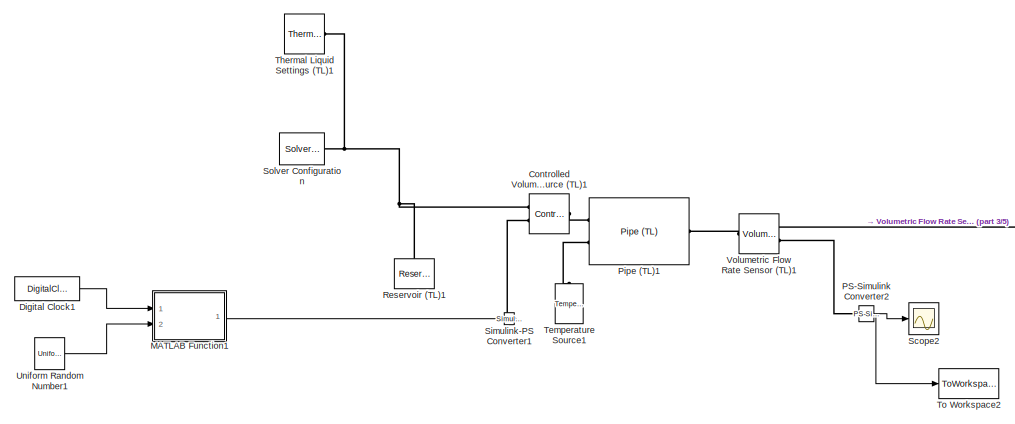
[diagram: root canvas - part 1/5, top left region]
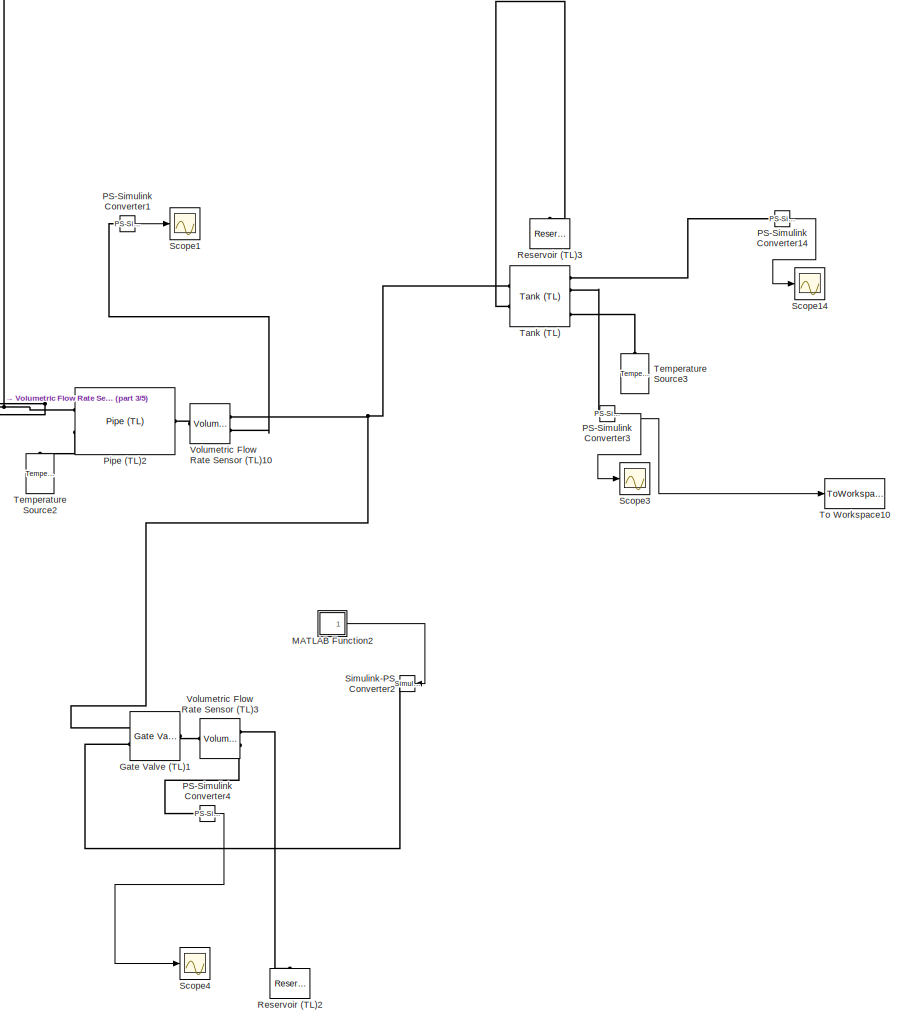
[diagram: root canvas - part 2/5, top right region]
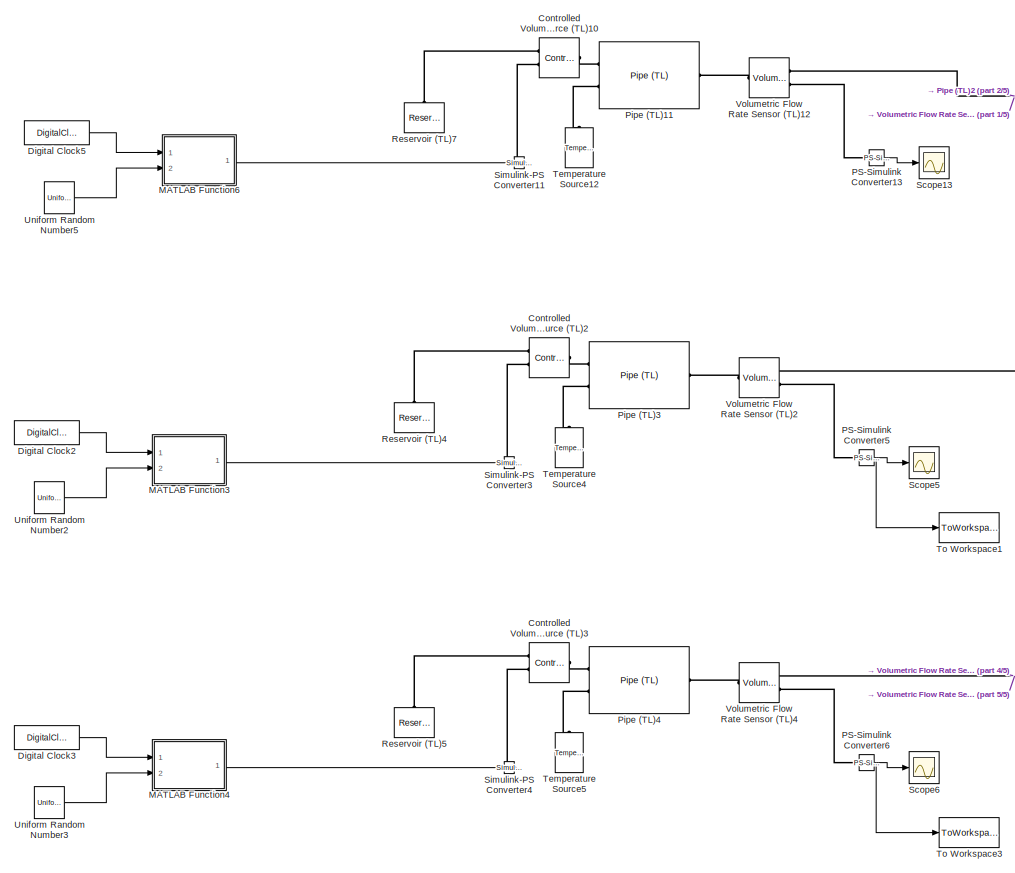
[diagram: root canvas - part 3/5, top left region]
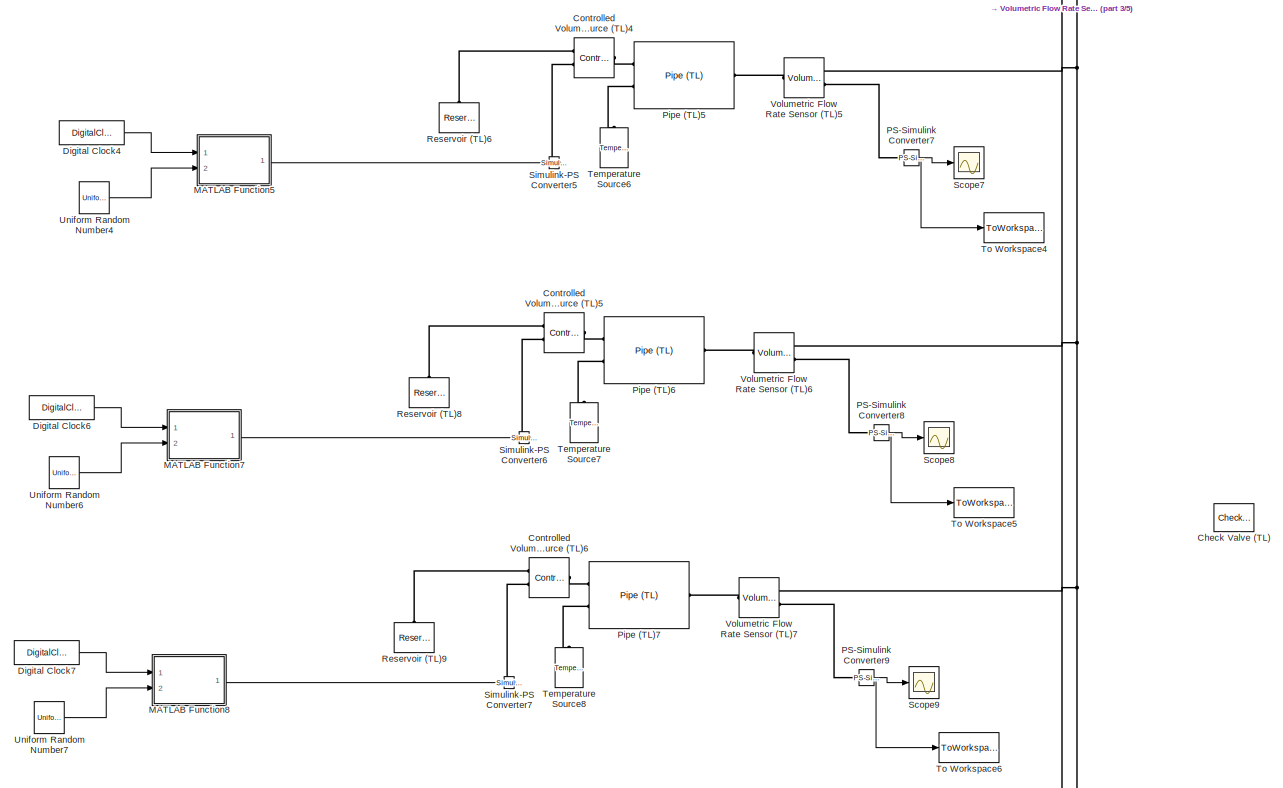
[diagram: root canvas - part 4/5, middle left region]
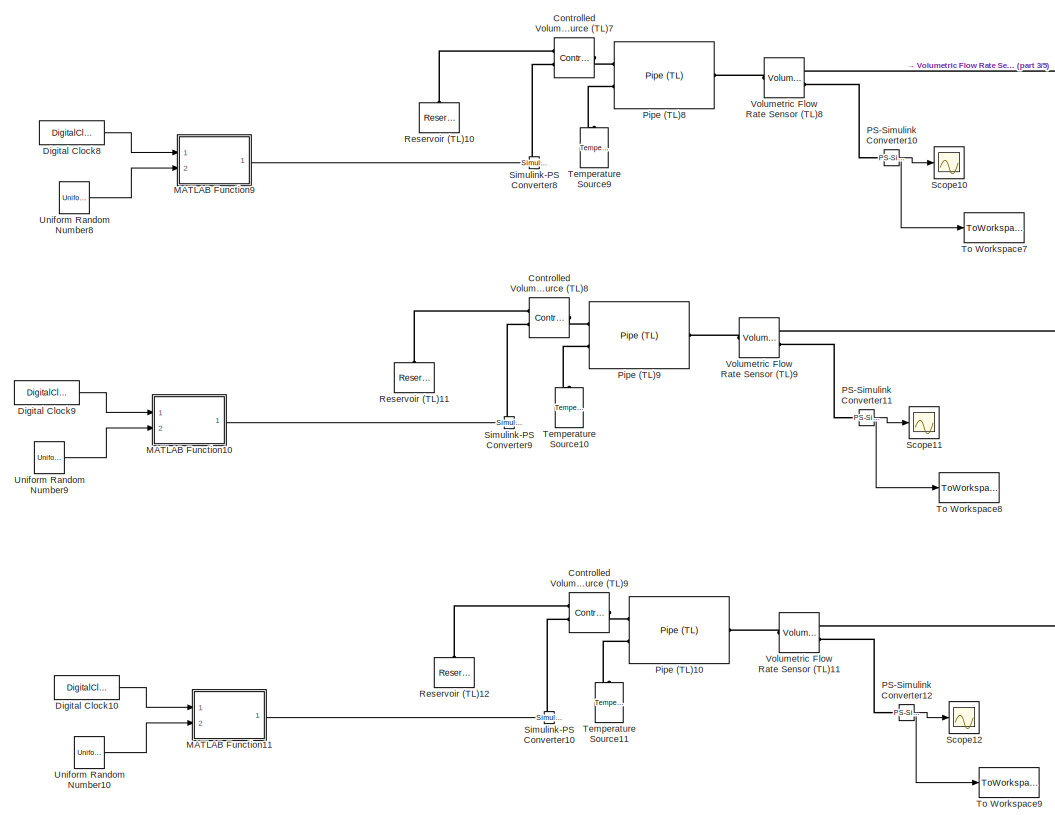
[diagram: root canvas - part 5/5, bottom left region]
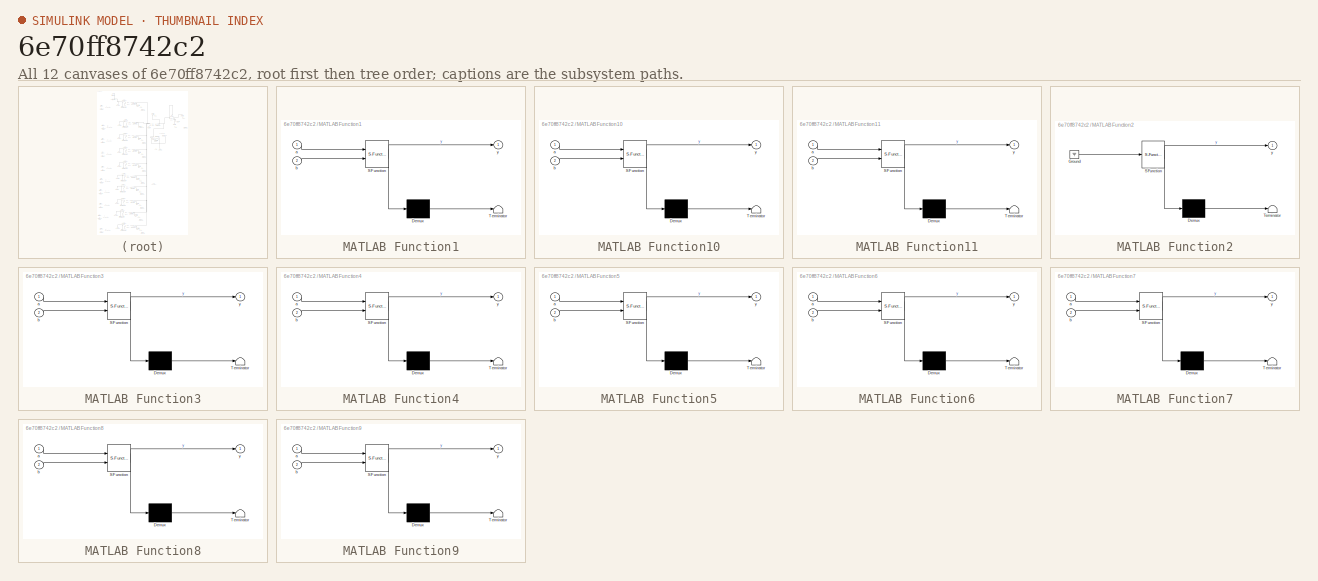
[diagram: thumbnail index - all 12 canvases of the model, root first then tree order]
MODEL slx_6e70ff8742c2
KIND model
CONFIG AbsTol = 1e-3
CONFIG EnableMultiTasking = off
CONFIG FixedStep = auto
CONFIG MaxStep = auto
CONFIG MinStep = auto
CONFIG RelTol = 1e-3
CONFIG SampleTimeConstraint = Unconstrained
CONFIG Solver = VariableStepAuto
CONFIG SolverName = VariableStepAuto
CONFIG StartTime = 0.0
CONFIG StopTime = 100
BLOCK [Reference] Check Valve (TL)  REF=SimscapeFluids_lib/Thermal Liquid/Valves & Orifices/Directional Control
Valves/Check Valve (TL)
  Commented = on
  Ports = [0, 0, 0, 0, 0, 1, 1]
  SourceBlock = SimscapeFluids_lib/Thermal Liquid/Valves & Orifices/Directional Control\nValves/Check Valve (TL)
  SourceProductBaseCode = SH
  SourceProductName = Simscape Fluids
  SourceType = Check Valve (TL)
BLOCK [Reference] Controlled Volumetric Flow Rate Source (TL)1  REF=fl_lib/Thermal Liquid/Sources/Controlled
Volumetric Flow Rate
Source (TL)
  Ports = [0, 0, 0, 0, 0, 2, 1]
  SourceBlock = fl_lib/Thermal Liquid/Sources/Controlled\nVolumetric Flow Rate\nSource (TL)
  SourceProductBaseCode = SS
  SourceProductName = Simscape
  SourceType = Controlled\nVolumetric Flow Rate\nSource (TL)
BLOCK [Reference] Controlled Volumetric Flow Rate Source (TL)10  REF=fl_lib/Thermal Liquid/Sources/Controlled
Volumetric Flow Rate
Source (TL)
  Ports = [0, 0, 0, 0, 0, 2, 1]
  SourceBlock = fl_lib/Thermal Liquid/Sources/Controlled\nVolumetric Flow Rate\nSource (TL)
  SourceProductBaseCode = SS
  SourceProductName = Simscape
  SourceType = Controlled\nVolumetric Flow Rate\nSource (TL)
BLOCK [Reference] Controlled Volumetric Flow Rate Source (TL)2  REF=fl_lib/Thermal Liquid/Sources/Controlled
Volumetric Flow Rate
Source (TL)
  Ports = [0, 0, 0, 0, 0, 2, 1]
  SourceBlock = fl_lib/Thermal Liquid/Sources/Controlled\nVolumetric Flow Rate\nSource (TL)
  SourceProductBaseCode = SS
  SourceProductName = Simscape
  SourceType = Controlled\nVolumetric Flow Rate\nSource (TL)
BLOCK [Reference] Controlled Volumetric Flow Rate Source (TL)3  REF=fl_lib/Thermal Liquid/Sources/Controlled
Volumetric Flow Rate
Source (TL)
  Ports = [0, 0, 0, 0, 0, 2, 1]
  SourceBlock = fl_lib/Thermal Liquid/Sources/Controlled\nVolumetric Flow Rate\nSource (TL)
  SourceProductBaseCode = SS
  SourceProductName = Simscape
  SourceType = Controlled\nVolumetric Flow Rate\nSource (TL)
BLOCK [Reference] Controlled Volumetric Flow Rate Source (TL)4  REF=fl_lib/Thermal Liquid/Sources/Controlled
Volumetric Flow Rate
Source (TL)
  Ports = [0, 0, 0, 0, 0, 2, 1]
  SourceBlock = fl_lib/Thermal Liquid/Sources/Controlled\nVolumetric Flow Rate\nSource (TL)
  SourceProductBaseCode = SS
  SourceProductName = Simscape
  SourceType = Controlled\nVolumetric Flow Rate\nSource (TL)
BLOCK [Reference] Controlled Volumetric Flow Rate Source (TL)5  REF=fl_lib/Thermal Liquid/Sources/Controlled
Volumetric Flow Rate
Source (TL)
  Ports = [0, 0, 0, 0, 0, 2, 1]
  SourceBlock = fl_lib/Thermal Liquid/Sources/Controlled\nVolumetric Flow Rate\nSource (TL)
  SourceProductBaseCode = SS
  SourceProductName = Simscape
  SourceType = Controlled\nVolumetric Flow Rate\nSource (TL)
BLOCK [Reference] Controlled Volumetric Flow Rate Source (TL)6  REF=fl_lib/Thermal Liquid/Sources/Controlled
Volumetric Flow Rate
Source (TL)
  Ports = [0, 0, 0, 0, 0, 2, 1]
  SourceBlock = fl_lib/Thermal Liquid/Sources/Controlled\nVolumetric Flow Rate\nSource (TL)
  SourceProductBaseCode = SS
  SourceProductName = Simscape
  SourceType = Controlled\nVolumetric Flow Rate\nSource (TL)
BLOCK [Reference] Controlled Volumetric Flow Rate Source (TL)7  REF=fl_lib/Thermal Liquid/Sources/Controlled
Volumetric Flow Rate
Source (TL)
  Ports = [0, 0, 0, 0, 0, 2, 1]
  SourceBlock = fl_lib/Thermal Liquid/Sources/Controlled\nVolumetric Flow Rate\nSource (TL)
  SourceProductBaseCode = SS
  SourceProductName = Simscape
  SourceType = Controlled\nVolumetric Flow Rate\nSource (TL)
BLOCK [Reference] Controlled Volumetric Flow Rate Source (TL)8  REF=fl_lib/Thermal Liquid/Sources/Controlled
Volumetric Flow Rate
Source (TL)
  Ports = [0, 0, 0, 0, 0, 2, 1]
  SourceBlock = fl_lib/Thermal Liquid/Sources/Controlled\nVolumetric Flow Rate\nSource (TL)
  SourceProductBaseCode = SS
  SourceProductName = Simscape
  SourceType = Controlled\nVolumetric Flow Rate\nSource (TL)
BLOCK [Reference] Controlled Volumetric Flow Rate Source (TL)9  REF=fl_lib/Thermal Liquid/Sources/Controlled
Volumetric Flow Rate
Source (TL)
  Ports = [0, 0, 0, 0, 0, 2, 1]
  SourceBlock = fl_lib/Thermal Liquid/Sources/Controlled\nVolumetric Flow Rate\nSource (TL)
  SourceProductBaseCode = SS
  SourceProductName = Simscape
  SourceType = Controlled\nVolumetric Flow Rate\nSource (TL)
BLOCK [DigitalClock] Digital Clock1
BLOCK [DigitalClock] Digital Clock10
BLOCK [DigitalClock] Digital Clock2
BLOCK [DigitalClock] Digital Clock3
BLOCK [DigitalClock] Digital Clock4
BLOCK [DigitalClock] Digital Clock5
BLOCK [DigitalClock] Digital Clock6
BLOCK [DigitalClock] Digital Clock7
BLOCK [DigitalClock] Digital Clock8
BLOCK [DigitalClock] Digital Clock9
BLOCK [Reference] Gate Valve (TL)1  REF=SimscapeFluids_lib/Thermal Liquid/Valves & Orifices/Flow Control Valves/Gate Valve (TL)
  Ports = [0, 0, 0, 0, 0, 2, 1]
  SourceBlock = SimscapeFluids_lib/Thermal Liquid/Valves & Orifices/Flow Control Valves/Gate Valve (TL)
  SourceProductBaseCode = SH
  SourceProductName = Simscape Fluids
  SourceType = Gate Valve (TL)
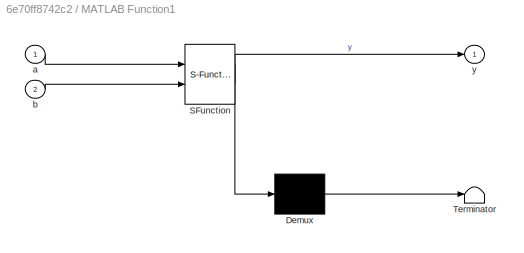
BLOCK [SubSystem] MATLAB Function1
  ErrorFcn = Stateflow.Translate.translate
  PermitHierarchicalResolution = ExplicitOnly
  Ports = [2, 1]
  RequestExecContextInheritance = off
  SFBlockType = MATLAB Function
  TreatAsAtomicUnit = on
BLOCK [Demux] MATLAB Function1/ Demux 
  Outputs = 1
  Ports = [1, 1]
BLOCK [S-Function] MATLAB Function1/ SFunction 
  EnableBusSupport = on
  FunctionName = sf_sfun
  PortCounts = [2 2]
  Ports = [2, 2]
  SFcnIsStateOwnerBlock = off
  SFunctionDeploymentMode = off
  Tag = Stateflow S-Function Simulation 1
BLOCK [Terminator] MATLAB Function1/ Terminator 
BLOCK [Inport] MATLAB Function1/a
  IconDisplay = Port number
BLOCK [Inport] MATLAB Function1/b
  IconDisplay = Port number
  Port = 2
BLOCK [Outport] MATLAB Function1/y
  IconDisplay = Port number
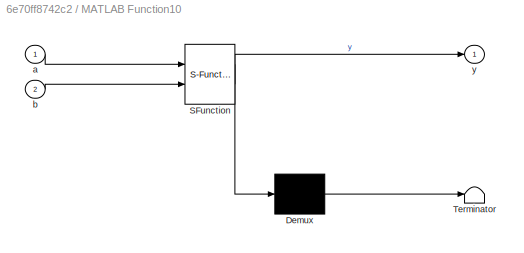
BLOCK [SubSystem] MATLAB Function10
  ErrorFcn = Stateflow.Translate.translate
  PermitHierarchicalResolution = ExplicitOnly
  Ports = [2, 1]
  RequestExecContextInheritance = off
  SFBlockType = MATLAB Function
  TreatAsAtomicUnit = on
BLOCK [Demux] MATLAB Function10/ Demux 
  Outputs = 1
  Ports = [1, 1]
BLOCK [S-Function] MATLAB Function10/ SFunction 
  EnableBusSupport = on
  FunctionName = sf_sfun
  PortCounts = [2 2]
  Ports = [2, 2]
  SFcnIsStateOwnerBlock = off
  SFunctionDeploymentMode = off
  Tag = Stateflow S-Function Simulation 10
BLOCK [Terminator] MATLAB Function10/ Terminator 
BLOCK [Inport] MATLAB Function10/a
  IconDisplay = Port number
BLOCK [Inport] MATLAB Function10/b
  IconDisplay = Port number
  Port = 2
BLOCK [Outport] MATLAB Function10/y
  IconDisplay = Port number
BLOCK [SubSystem] MATLAB Function11
  ErrorFcn = Stateflow.Translate.translate
  PermitHierarchicalResolution = ExplicitOnly
  Ports = [2, 1]
  RequestExecContextInheritance = off
  SFBlockType = MATLAB Function
  TreatAsAtomicUnit = on
BLOCK [Demux] MATLAB Function11/ Demux 
  Outputs = 1
  Ports = [1, 1]
BLOCK [S-Function] MATLAB Function11/ SFunction 
  EnableBusSupport = on
  FunctionName = sf_sfun
  PortCounts = [2 2]
  Ports = [2, 2]
  SFcnIsStateOwnerBlock = off
  SFunctionDeploymentMode = off
  Tag = Stateflow S-Function Simulation 11
BLOCK [Terminator] MATLAB Function11/ Terminator 
BLOCK [Inport] MATLAB Function11/a
  IconDisplay = Port number
BLOCK [Inport] MATLAB Function11/b
  IconDisplay = Port number
  Port = 2
BLOCK [Outport] MATLAB Function11/y
  IconDisplay = Port number
BLOCK [SubSystem] MATLAB Function2
  ErrorFcn = Stateflow.Translate.translate
  PermitHierarchicalResolution = ExplicitOnly
  Ports = [0, 1]
  RequestExecContextInheritance = off
  SFBlockType = MATLAB Function
  TreatAsAtomicUnit = on
BLOCK [Demux] MATLAB Function2/ Demux 
  Outputs = 1
  Ports = [1, 1]
BLOCK [Ground] MATLAB Function2/ Ground 
BLOCK [S-Function] MATLAB Function2/ SFunction 
  EnableBusSupport = on
  FunctionName = sf_sfun
  PortCounts = [1 2]
  Ports = [1, 2]
  SFcnIsStateOwnerBlock = off
  SFunctionDeploymentMode = off
  Tag = Stateflow S-Function Simulation 2
BLOCK [Terminator] MATLAB Function2/ Terminator 
BLOCK [Outport] MATLAB Function2/y
  IconDisplay = Port number
BLOCK [SubSystem] MATLAB Function3
  ErrorFcn = Stateflow.Translate.translate
  PermitHierarchicalResolution = ExplicitOnly
  Ports = [2, 1]
  RequestExecContextInheritance = off
  SFBlockType = MATLAB Function
  TreatAsAtomicUnit = on
BLOCK [Demux] MATLAB Function3/ Demux 
  Outputs = 1
  Ports = [1, 1]
BLOCK [S-Function] MATLAB Function3/ SFunction 
  EnableBusSupport = on
  FunctionName = sf_sfun
  PortCounts = [2 2]
  Ports = [2, 2]
  SFcnIsStateOwnerBlock = off
  SFunctionDeploymentMode = off
  Tag = Stateflow S-Function Simulation 3
BLOCK [Terminator] MATLAB Function3/ Terminator 
BLOCK [Inport] MATLAB Function3/a
  IconDisplay = Port number
BLOCK [Inport] MATLAB Function3/b
  IconDisplay = Port number
  Port = 2
BLOCK [Outport] MATLAB Function3/y
  IconDisplay = Port number
BLOCK [SubSystem] MATLAB Function4
  ErrorFcn = Stateflow.Translate.translate
  PermitHierarchicalResolution = ExplicitOnly
  Ports = [2, 1]
  RequestExecContextInheritance = off
  SFBlockType = MATLAB Function
  TreatAsAtomicUnit = on
BLOCK [Demux] MATLAB Function4/ Demux 
  Outputs = 1
  Ports = [1, 1]
BLOCK [S-Function] MATLAB Function4/ SFunction 
  EnableBusSupport = on
  FunctionName = sf_sfun
  PortCounts = [2 2]
  Ports = [2, 2]
  SFcnIsStateOwnerBlock = off
  SFunctionDeploymentMode = off
  Tag = Stateflow S-Function Simulation 4
BLOCK [Terminator] MATLAB Function4/ Terminator 
BLOCK [Inport] MATLAB Function4/a
  IconDisplay = Port number
BLOCK [Inport] MATLAB Function4/b
  IconDisplay = Port number
  Port = 2
BLOCK [Outport] MATLAB Function4/y
  IconDisplay = Port number
BLOCK [SubSystem] MATLAB Function5
  ErrorFcn = Stateflow.Translate.translate
  PermitHierarchicalResolution = ExplicitOnly
  Ports = [2, 1]
  RequestExecContextInheritance = off
  SFBlockType = MATLAB Function
  TreatAsAtomicUnit = on
BLOCK [Demux] MATLAB Function5/ Demux 
  Outputs = 1
  Ports = [1, 1]
BLOCK [S-Function] MATLAB Function5/ SFunction 
  EnableBusSupport = on
  FunctionName = sf_sfun
  PortCounts = [2 2]
  Ports = [2, 2]
  SFcnIsStateOwnerBlock = off
  SFunctionDeploymentMode = off
  Tag = Stateflow S-Function Simulation 5
BLOCK [Terminator] MATLAB Function5/ Terminator 
BLOCK [Inport] MATLAB Function5/a
  IconDisplay = Port number
BLOCK [Inport] MATLAB Function5/b
  IconDisplay = Port number
  Port = 2
BLOCK [Outport] MATLAB Function5/y
  IconDisplay = Port number
BLOCK [SubSystem] MATLAB Function6
  ErrorFcn = Stateflow.Translate.translate
  PermitHierarchicalResolution = ExplicitOnly
  Ports = [2, 1]
  RequestExecContextInheritance = off
  SFBlockType = MATLAB Function
  TreatAsAtomicUnit = on
BLOCK [Demux] MATLAB Function6/ Demux 
  Outputs = 1
  Ports = [1, 1]
BLOCK [S-Function] MATLAB Function6/ SFunction 
  EnableBusSupport = on
  FunctionName = sf_sfun
  PortCounts = [2 2]
  Ports = [2, 2]
  SFcnIsStateOwnerBlock = off
  SFunctionDeploymentMode = off
  Tag = Stateflow S-Function Simulation 8
BLOCK [Terminator] MATLAB Function6/ Terminator 
BLOCK [Inport] MATLAB Function6/a
  IconDisplay = Port number
BLOCK [Inport] MATLAB Function6/b
  IconDisplay = Port number
  Port = 2
BLOCK [Outport] MATLAB Function6/y
  IconDisplay = Port number
BLOCK [SubSystem] MATLAB Function7
  ErrorFcn = Stateflow.Translate.translate
  PermitHierarchicalResolution = ExplicitOnly
  Ports = [2, 1]
  RequestExecContextInheritance = off
  SFBlockType = MATLAB Function
  TreatAsAtomicUnit = on
BLOCK [Demux] MATLAB Function7/ Demux 
  Outputs = 1
  Ports = [1, 1]
BLOCK [S-Function] MATLAB Function7/ SFunction 
  EnableBusSupport = on
  FunctionName = sf_sfun
  PortCounts = [2 2]
  Ports = [2, 2]
  SFcnIsStateOwnerBlock = off
  SFunctionDeploymentMode = off
  Tag = Stateflow S-Function Simulation 6
BLOCK [Terminator] MATLAB Function7/ Terminator 
BLOCK [Inport] MATLAB Function7/a
  IconDisplay = Port number
BLOCK [Inport] MATLAB Function7/b
  IconDisplay = Port number
  Port = 2
BLOCK [Outport] MATLAB Function7/y
  IconDisplay = Port number
BLOCK [SubSystem] MATLAB Function8
  ErrorFcn = Stateflow.Translate.translate
  PermitHierarchicalResolution = ExplicitOnly
  Ports = [2, 1]
  RequestExecContextInheritance = off
  SFBlockType = MATLAB Function
  TreatAsAtomicUnit = on
BLOCK [Demux] MATLAB Function8/ Demux 
  Outputs = 1
  Ports = [1, 1]
BLOCK [S-Function] MATLAB Function8/ SFunction 
  EnableBusSupport = on
  FunctionName = sf_sfun
  PortCounts = [2 2]
  Ports = [2, 2]
  SFcnIsStateOwnerBlock = off
  SFunctionDeploymentMode = off
  Tag = Stateflow S-Function Simulation 7
BLOCK [Terminator] MATLAB Function8/ Terminator 
BLOCK [Inport] MATLAB Function8/a
  IconDisplay = Port number
BLOCK [Inport] MATLAB Function8/b
  IconDisplay = Port number
  Port = 2
BLOCK [Outport] MATLAB Function8/y
  IconDisplay = Port number
BLOCK [SubSystem] MATLAB Function9
  ErrorFcn = Stateflow.Translate.translate
  PermitHierarchicalResolution = ExplicitOnly
  Ports = [2, 1]
  RequestExecContextInheritance = off
  SFBlockType = MATLAB Function
  TreatAsAtomicUnit = on
BLOCK [Demux] MATLAB Function9/ Demux 
  Outputs = 1
  Ports = [1, 1]
BLOCK [S-Function] MATLAB Function9/ SFunction 
  EnableBusSupport = on
  FunctionName = sf_sfun
  PortCounts = [2 2]
  Ports = [2, 2]
  SFcnIsStateOwnerBlock = off
  SFunctionDeploymentMode = off
  Tag = Stateflow S-Function Simulation 9
BLOCK [Terminator] MATLAB Function9/ Terminator 
BLOCK [Inport] MATLAB Function9/a
  IconDisplay = Port number
BLOCK [Inport] MATLAB Function9/b
  IconDisplay = Port number
  Port = 2
BLOCK [Outport] MATLAB Function9/y
  IconDisplay = Port number
BLOCK [Reference] PS-Simulink Converter1  REF=nesl_utility/PS-Simulink
Converter
  Ports = [0, 1, 0, 0, 0, 1]
  SourceBlock = nesl_utility/PS-Simulink\nConverter
  SourceProductBaseCode = SS
  SourceProductName = Simscape
  SourceType = PS-Simulink\nConverter
BLOCK [Reference] PS-Simulink Converter10  REF=nesl_utility/PS-Simulink
Converter
  Ports = [0, 1, 0, 0, 0, 1]
  SourceBlock = nesl_utility/PS-Simulink\nConverter
  SourceProductBaseCode = SS
  SourceProductName = Simscape
  SourceType = PS-Simulink\nConverter
BLOCK [Reference] PS-Simulink Converter11  REF=nesl_utility/PS-Simulink
Converter
  Ports = [0, 1, 0, 0, 0, 1]
  SourceBlock = nesl_utility/PS-Simulink\nConverter
  SourceProductBaseCode = SS
  SourceProductName = Simscape
  SourceType = PS-Simulink\nConverter
BLOCK [Reference] PS-Simulink Converter12  REF=nesl_utility/PS-Simulink
Converter
  Ports = [0, 1, 0, 0, 0, 1]
  SourceBlock = nesl_utility/PS-Simulink\nConverter
  SourceProductBaseCode = SS
  SourceProductName = Simscape
  SourceType = PS-Simulink\nConverter
BLOCK [Reference] PS-Simulink Converter13  REF=nesl_utility/PS-Simulink
Converter
  Ports = [0, 1, 0, 0, 0, 1]
  SourceBlock = nesl_utility/PS-Simulink\nConverter
  SourceProductBaseCode = SS
  SourceProductName = Simscape
  SourceType = PS-Simulink\nConverter
BLOCK [Reference] PS-Simulink Converter14  REF=nesl_utility/PS-Simulink
Converter
  Ports = [0, 1, 0, 0, 0, 1]
  SourceBlock = nesl_utility/PS-Simulink\nConverter
  SourceProductBaseCode = SS
  SourceProductName = Simscape
  SourceType = PS-Simulink\nConverter
BLOCK [Reference] PS-Simulink Converter2  REF=nesl_utility/PS-Simulink
Converter
  Ports = [0, 1, 0, 0, 0, 1]
  SourceBlock = nesl_utility/PS-Simulink\nConverter
  SourceProductBaseCode = SS
  SourceProductName = Simscape
  SourceType = PS-Simulink\nConverter
BLOCK [Reference] PS-Simulink Converter3  REF=nesl_utility/PS-Simulink
Converter
  Ports = [0, 1, 0, 0, 0, 1]
  SourceBlock = nesl_utility/PS-Simulink\nConverter
  SourceProductBaseCode = SS
  SourceProductName = Simscape
  SourceType = PS-Simulink\nConverter
BLOCK [Reference] PS-Simulink Converter4  REF=nesl_utility/PS-Simulink
Converter
  Ports = [0, 1, 0, 0, 0, 1]
  SourceBlock = nesl_utility/PS-Simulink\nConverter
  SourceProductBaseCode = SS
  SourceProductName = Simscape
  SourceType = PS-Simulink\nConverter
BLOCK [Reference] PS-Simulink Converter5  REF=nesl_utility/PS-Simulink
Converter
  Ports = [0, 1, 0, 0, 0, 1]
  SourceBlock = nesl_utility/PS-Simulink\nConverter
  SourceProductBaseCode = SS
  SourceProductName = Simscape
  SourceType = PS-Simulink\nConverter
BLOCK [Reference] PS-Simulink Converter6  REF=nesl_utility/PS-Simulink
Converter
  Ports = [0, 1, 0, 0, 0, 1]
  SourceBlock = nesl_utility/PS-Simulink\nConverter
  SourceProductBaseCode = SS
  SourceProductName = Simscape
  SourceType = PS-Simulink\nConverter
BLOCK [Reference] PS-Simulink Converter7  REF=nesl_utility/PS-Simulink
Converter
  Ports = [0, 1, 0, 0, 0, 1]
  SourceBlock = nesl_utility/PS-Simulink\nConverter
  SourceProductBaseCode = SS
  SourceProductName = Simscape
  SourceType = PS-Simulink\nConverter
BLOCK [Reference] PS-Simulink Converter8  REF=nesl_utility/PS-Simulink
Converter
  Ports = [0, 1, 0, 0, 0, 1]
  SourceBlock = nesl_utility/PS-Simulink\nConverter
  SourceProductBaseCode = SS
  SourceProductName = Simscape
  SourceType = PS-Simulink\nConverter
BLOCK [Reference] PS-Simulink Converter9  REF=nesl_utility/PS-Simulink
Converter
  Ports = [0, 1, 0, 0, 0, 1]
  SourceBlock = nesl_utility/PS-Simulink\nConverter
  SourceProductBaseCode = SS
  SourceProductName = Simscape
  SourceType = PS-Simulink\nConverter
BLOCK [Reference] Pipe (TL)1  REF=fl_lib/Thermal Liquid/Elements/Pipe (TL)
  Ports = [0, 0, 0, 0, 0, 2, 1]
  SourceBlock = fl_lib/Thermal Liquid/Elements/Pipe (TL)
  SourceProductBaseCode = SS
  SourceProductName = Simscape
  SourceType = Pipe (TL)
BLOCK [Reference] Pipe (TL)10  REF=fl_lib/Thermal Liquid/Elements/Pipe (TL)
  Ports = [0, 0, 0, 0, 0, 2, 1]
  SourceBlock = fl_lib/Thermal Liquid/Elements/Pipe (TL)
  SourceProductBaseCode = SS
  SourceProductName = Simscape
  SourceType = Pipe (TL)
BLOCK [Reference] Pipe (TL)11  REF=fl_lib/Thermal Liquid/Elements/Pipe (TL)
  Ports = [0, 0, 0, 0, 0, 2, 1]
  SourceBlock = fl_lib/Thermal Liquid/Elements/Pipe (TL)
  SourceProductBaseCode = SS
  SourceProductName = Simscape
  SourceType = Pipe (TL)
BLOCK [Reference] Pipe (TL)2  REF=fl_lib/Thermal Liquid/Elements/Pipe (TL)
  Ports = [0, 0, 0, 0, 0, 2, 1]
  SourceBlock = fl_lib/Thermal Liquid/Elements/Pipe (TL)
  SourceProductBaseCode = SS
  SourceProductName = Simscape
  SourceType = Pipe (TL)
BLOCK [Reference] Pipe (TL)3  REF=fl_lib/Thermal Liquid/Elements/Pipe (TL)
  Ports = [0, 0, 0, 0, 0, 2, 1]
  SourceBlock = fl_lib/Thermal Liquid/Elements/Pipe (TL)
  SourceProductBaseCode = SS
  SourceProductName = Simscape
  SourceType = Pipe (TL)
BLOCK [Reference] Pipe (TL)4  REF=fl_lib/Thermal Liquid/Elements/Pipe (TL)
  Ports = [0, 0, 0, 0, 0, 2, 1]
  SourceBlock = fl_lib/Thermal Liquid/Elements/Pipe (TL)
  SourceProductBaseCode = SS
  SourceProductName = Simscape
  SourceType = Pipe (TL)
BLOCK [Reference] Pipe (TL)5  REF=fl_lib/Thermal Liquid/Elements/Pipe (TL)
  Ports = [0, 0, 0, 0, 0, 2, 1]
  SourceBlock = fl_lib/Thermal Liquid/Elements/Pipe (TL)
  SourceProductBaseCode = SS
  SourceProductName = Simscape
  SourceType = Pipe (TL)
BLOCK [Reference] Pipe (TL)6  REF=fl_lib/Thermal Liquid/Elements/Pipe (TL)
  Ports = [0, 0, 0, 0, 0, 2, 1]
  SourceBlock = fl_lib/Thermal Liquid/Elements/Pipe (TL)
  SourceProductBaseCode = SS
  SourceProductName = Simscape
  SourceType = Pipe (TL)
BLOCK [Reference] Pipe (TL)7  REF=fl_lib/Thermal Liquid/Elements/Pipe (TL)
  Ports = [0, 0, 0, 0, 0, 2, 1]
  SourceBlock = fl_lib/Thermal Liquid/Elements/Pipe (TL)
  SourceProductBaseCode = SS
  SourceProductName = Simscape
  SourceType = Pipe (TL)
BLOCK [Reference] Pipe (TL)8  REF=fl_lib/Thermal Liquid/Elements/Pipe (TL)
  Ports = [0, 0, 0, 0, 0, 2, 1]
  SourceBlock = fl_lib/Thermal Liquid/Elements/Pipe (TL)
  SourceProductBaseCode = SS
  SourceProductName = Simscape
  SourceType = Pipe (TL)
BLOCK [Reference] Pipe (TL)9  REF=fl_lib/Thermal Liquid/Elements/Pipe (TL)
  Ports = [0, 0, 0, 0, 0, 2, 1]
  SourceBlock = fl_lib/Thermal Liquid/Elements/Pipe (TL)
  SourceProductBaseCode = SS
  SourceProductName = Simscape
  SourceType = Pipe (TL)
BLOCK [Reference] Reservoir (TL)1  REF=fl_lib/Thermal Liquid/Elements/Reservoir (TL)
  Ports = [0, 0, 0, 0, 0, 1]
  SourceBlock = fl_lib/Thermal Liquid/Elements/Reservoir (TL)
  SourceProductBaseCode = SS
  SourceProductName = Simscape
  SourceType = Reservoir (TL)
BLOCK [Reference] Reservoir (TL)10  REF=fl_lib/Thermal Liquid/Elements/Reservoir (TL)
  Ports = [0, 0, 0, 0, 0, 1]
  SourceBlock = fl_lib/Thermal Liquid/Elements/Reservoir (TL)
  SourceProductBaseCode = SS
  SourceProductName = Simscape
  SourceType = Reservoir (TL)
BLOCK [Reference] Reservoir (TL)11  REF=fl_lib/Thermal Liquid/Elements/Reservoir (TL)
  Ports = [0, 0, 0, 0, 0, 1]
  SourceBlock = fl_lib/Thermal Liquid/Elements/Reservoir (TL)
  SourceProductBaseCode = SS
  SourceProductName = Simscape
  SourceType = Reservoir (TL)
BLOCK [Reference] Reservoir (TL)12  REF=fl_lib/Thermal Liquid/Elements/Reservoir (TL)
  Ports = [0, 0, 0, 0, 0, 1]
  SourceBlock = fl_lib/Thermal Liquid/Elements/Reservoir (TL)
  SourceProductBaseCode = SS
  SourceProductName = Simscape
  SourceType = Reservoir (TL)
BLOCK [Reference] Reservoir (TL)2  REF=fl_lib/Thermal Liquid/Elements/Reservoir (TL)
  Ports = [0, 0, 0, 0, 0, 1]
  SourceBlock = fl_lib/Thermal Liquid/Elements/Reservoir (TL)
  SourceProductBaseCode = SS
  SourceProductName = Simscape
  SourceType = Reservoir (TL)
BLOCK [Reference] Reservoir (TL)3  REF=fl_lib/Thermal Liquid/Elements/Reservoir (TL)
  Ports = [0, 0, 0, 0, 0, 1]
  SourceBlock = fl_lib/Thermal Liquid/Elements/Reservoir (TL)
  SourceProductBaseCode = SS
  SourceProductName = Simscape
  SourceType = Reservoir (TL)
BLOCK [Reference] Reservoir (TL)4  REF=fl_lib/Thermal Liquid/Elements/Reservoir (TL)
  Ports = [0, 0, 0, 0, 0, 1]
  SourceBlock = fl_lib/Thermal Liquid/Elements/Reservoir (TL)
  SourceProductBaseCode = SS
  SourceProductName = Simscape
  SourceType = Reservoir (TL)
BLOCK [Reference] Reservoir (TL)5  REF=fl_lib/Thermal Liquid/Elements/Reservoir (TL)
  Ports = [0, 0, 0, 0, 0, 1]
  SourceBlock = fl_lib/Thermal Liquid/Elements/Reservoir (TL)
  SourceProductBaseCode = SS
  SourceProductName = Simscape
  SourceType = Reservoir (TL)
BLOCK [Reference] Reservoir (TL)6  REF=fl_lib/Thermal Liquid/Elements/Reservoir (TL)
  Ports = [0, 0, 0, 0, 0, 1]
  SourceBlock = fl_lib/Thermal Liquid/Elements/Reservoir (TL)
  SourceProductBaseCode = SS
  SourceProductName = Simscape
  SourceType = Reservoir (TL)
BLOCK [Reference] Reservoir (TL)7  REF=fl_lib/Thermal Liquid/Elements/Reservoir (TL)
  Ports = [0, 0, 0, 0, 0, 1]
  SourceBlock = fl_lib/Thermal Liquid/Elements/Reservoir (TL)
  SourceProductBaseCode = SS
  SourceProductName = Simscape
  SourceType = Reservoir (TL)
BLOCK [Reference] Reservoir (TL)8  REF=fl_lib/Thermal Liquid/Elements/Reservoir (TL)
  Ports = [0, 0, 0, 0, 0, 1]
  SourceBlock = fl_lib/Thermal Liquid/Elements/Reservoir (TL)
  SourceProductBaseCode = SS
  SourceProductName = Simscape
  SourceType = Reservoir (TL)
BLOCK [Reference] Reservoir (TL)9  REF=fl_lib/Thermal Liquid/Elements/Reservoir (TL)
  Ports = [0, 0, 0, 0, 0, 1]
  SourceBlock = fl_lib/Thermal Liquid/Elements/Reservoir (TL)
  SourceProductBaseCode = SS
  SourceProductName = Simscape
  SourceType = Reservoir (TL)
BLOCK [Scope] Scope1
  Floating = off
  NumInputPorts = 1
  Ports = [1]
  ScopeSpecificationString = Simulink.scopes.TimeScopeBlockCfg('CurrentConfiguration', extmgr.ConfigurationSet(extmgr.Configuration('Core','General UI',true),extmgr.Configuration('Core','Source UI',true),extmgr.Configuration('Sources','WiredSimulink',true,'DataLoggingVariableName','ScopeData1'),extmgr.Configuration('Visuals','Time Domain',true,'SerializedDisplays',{struct('MinYLimReal','-3.80616','MaxYLimReal','3.96809','YLab...<+1435ch>
BLOCK [Scope] Scope10
  Floating = off
  NumInputPorts = 1
  Ports = [1]
  ScopeSpecificationString = Simulink.scopes.TimeScopeBlockCfg('CurrentConfiguration', extmgr.ConfigurationSet(extmgr.Configuration('Core','General UI',true),extmgr.Configuration('Core','Source UI',true),extmgr.Configuration('Sources','WiredSimulink',true,'DataLoggingVariableName','ScopeData6'),extmgr.Configuration('Visuals','Time Domain',true,'SerializedDisplays',{struct('MinYLimReal','-0.19692','MaxYLimReal','0.15783','YLab...<+1483ch>
BLOCK [Scope] Scope11
  Floating = off
  NumInputPorts = 1
  Ports = [1]
  ScopeSpecificationString = Simulink.scopes.TimeScopeBlockCfg('CurrentConfiguration', extmgr.ConfigurationSet(extmgr.Configuration('Core','General UI',true),extmgr.Configuration('Core','Source UI',true),extmgr.Configuration('Sources','WiredSimulink',true,'DataLoggingVariableName','ScopeData7'),extmgr.Configuration('Visuals','Time Domain',true,'SerializedDisplays',{struct('MinYLimReal','-0.19692','MaxYLimReal','0.15783','YLab...<+1483ch>
BLOCK [Scope] Scope12
  Floating = off
  NumInputPorts = 1
  Ports = [1]
  ScopeSpecificationString = Simulink.scopes.TimeScopeBlockCfg('CurrentConfiguration', extmgr.ConfigurationSet(extmgr.Configuration('Core','General UI',true),extmgr.Configuration('Core','Source UI',true),extmgr.Configuration('Sources','WiredSimulink',true,'DataLoggingVariableName','ScopeData8'),extmgr.Configuration('Visuals','Time Domain',true,'SerializedDisplays',{struct('MinYLimReal','-0.19692','MaxYLimReal','0.15783','YLab...<+1483ch>
BLOCK [Scope] Scope13
  Floating = off
  NumInputPorts = 1
  Ports = [1]
  ScopeSpecificationString = Simulink.scopes.TimeScopeBlockCfg('CurrentConfiguration', extmgr.ConfigurationSet(extmgr.Configuration('Core','General UI',true),extmgr.Configuration('Core','Source UI',true),extmgr.Configuration('Sources','WiredSimulink',true),extmgr.Configuration('Visuals','Time Domain',true,'SerializedDisplays',{struct('MinYLimReal','-0.07785','MaxYLimReal','0.38773','YLabelReal','','MinYLimMag','0.00000','MaxY...<+1445ch>
BLOCK [Scope] Scope14
  Floating = off
  NumInputPorts = 1
  Ports = [1]
  ScopeSpecificationString = Simulink.scopes.TimeScopeBlockCfg('CurrentConfiguration', extmgr.ConfigurationSet(extmgr.Configuration('Core','General UI',true),extmgr.Configuration('Core','Source UI',true),extmgr.Configuration('Sources','WiredSimulink',true,'DataLoggingVariableName','ScopeData9'),extmgr.Configuration('Visuals','Time Domain',true,'SerializedDisplays',{struct('MinYLimReal','4.24553','MaxYLimReal','21.78959','YLab...<+1457ch>
BLOCK [Scope] Scope2
  Floating = off
  NumInputPorts = 1
  Ports = [1]
  ScopeSpecificationString = Simulink.scopes.TimeScopeBlockCfg('CurrentConfiguration', extmgr.ConfigurationSet(extmgr.Configuration('Core','General UI',true),extmgr.Configuration('Core','Source UI',true),extmgr.Configuration('Sources','WiredSimulink',true,'DataLoggingVariableName','ScopeData2'),extmgr.Configuration('Visuals','Time Domain',true,'SerializedDisplays',{struct('MinYLimReal','-0.07785','MaxYLimReal','0.38773','YLab...<+1461ch>
BLOCK [Scope] Scope3
  Floating = off
  NumInputPorts = 1
  Ports = [1]
  ScopeSpecificationString = Simulink.scopes.TimeScopeBlockCfg('CurrentConfiguration', extmgr.ConfigurationSet(extmgr.Configuration('Core','General UI',true),extmgr.Configuration('Core','Source UI',true),extmgr.Configuration('Sources','WiredSimulink',true,'DataLoggingVariableName','ScopeData3'),extmgr.Configuration('Visuals','Time Domain',true,'SerializedDisplays',{struct('MinYLimReal','2.14404','MaxYLimReal','10.70336','YLab...<+1459ch>
BLOCK [Scope] Scope4
  Floating = off
  NumInputPorts = 1
  Ports = [1]
  ScopeSpecificationString = Simulink.scopes.TimeScopeBlockCfg('CurrentConfiguration', extmgr.ConfigurationSet(extmgr.Configuration('Core','General UI',true),extmgr.Configuration('Core','Source UI',true),extmgr.Configuration('Sources','WiredSimulink',true,'DataLoggingVariableName','ScopeData4'),extmgr.Configuration('Visuals','Time Domain',true,'SerializedDisplays',{struct('MinYLimReal','-0.0000000000001','MaxYLimReal','0.0000...<+1499ch>
BLOCK [Scope] Scope5
  Floating = off
  NumInputPorts = 1
  Ports = [1]
  ScopeSpecificationString = Simulink.scopes.TimeScopeBlockCfg('CurrentConfiguration', extmgr.ConfigurationSet(extmgr.Configuration('Core','General UI',true),extmgr.Configuration('Core','Source UI',true),extmgr.Configuration('Sources','WiredSimulink',true,'DataLoggingVariableName','ScopeData1'),extmgr.Configuration('Visuals','Time Domain',true,'SerializedDisplays',{struct('MinYLimReal','-0.19692','MaxYLimReal','0.15783','YLab...<+1483ch>
BLOCK [Scope] Scope6
  Floating = off
  NumInputPorts = 1
  Ports = [1]
  ScopeSpecificationString = Simulink.scopes.TimeScopeBlockCfg('CurrentConfiguration', extmgr.ConfigurationSet(extmgr.Configuration('Core','General UI',true),extmgr.Configuration('Core','Source UI',true),extmgr.Configuration('Sources','WiredSimulink',true,'DataLoggingVariableName','ScopeData2'),extmgr.Configuration('Visuals','Time Domain',true,'SerializedDisplays',{struct('MinYLimReal','0.04675','MaxYLimReal','0.05312','YLabe...<+1457ch>
BLOCK [Scope] Scope7
  Floating = off
  NumInputPorts = 1
  Ports = [1]
  ScopeSpecificationString = Simulink.scopes.TimeScopeBlockCfg('CurrentConfiguration', extmgr.ConfigurationSet(extmgr.Configuration('Core','General UI',true),extmgr.Configuration('Core','Source UI',true),extmgr.Configuration('Sources','WiredSimulink',true,'DataLoggingVariableName','ScopeData3'),extmgr.Configuration('Visuals','Time Domain',true,'SerializedDisplays',{struct('MinYLimReal','-0.07785','MaxYLimReal','0.38773','YLab...<+1488ch>
BLOCK [Scope] Scope8
  Floating = off
  NumInputPorts = 1
  Ports = [1]
  ScopeSpecificationString = Simulink.scopes.TimeScopeBlockCfg('CurrentConfiguration', extmgr.ConfigurationSet(extmgr.Configuration('Core','General UI',true),extmgr.Configuration('Core','Source UI',true),extmgr.Configuration('Sources','WiredSimulink',true,'DataLoggingVariableName','ScopeData4'),extmgr.Configuration('Visuals','Time Domain',true,'SerializedDisplays',{struct('MinYLimReal','-0.19692','MaxYLimReal','0.15783','YLab...<+1483ch>
BLOCK [Scope] Scope9
  Floating = off
  NumInputPorts = 1
  Ports = [1]
  ScopeSpecificationString = Simulink.scopes.TimeScopeBlockCfg('CurrentConfiguration', extmgr.ConfigurationSet(extmgr.Configuration('Core','General UI',true),extmgr.Configuration('Core','Source UI',true),extmgr.Configuration('Sources','WiredSimulink',true,'DataLoggingVariableName','ScopeData5'),extmgr.Configuration('Visuals','Time Domain',true,'SerializedDisplays',{struct('MinYLimReal','-0.19692','MaxYLimReal','0.15783','YLab...<+1483ch>
BLOCK [Reference] Simulink-PS Converter1  REF=nesl_utility/Simulink-PS
Converter
  Ports = [1, 0, 0, 0, 0, 0, 1]
  SourceBlock = nesl_utility/Simulink-PS\nConverter
  SourceProductBaseCode = SS
  SourceProductName = Simscape
  SourceType = Simulink-PS\nConverter
BLOCK [Reference] Simulink-PS Converter10  REF=nesl_utility/Simulink-PS
Converter
  Ports = [1, 0, 0, 0, 0, 0, 1]
  SourceBlock = nesl_utility/Simulink-PS\nConverter
  SourceProductBaseCode = SS
  SourceProductName = Simscape
  SourceType = Simulink-PS\nConverter
BLOCK [Reference] Simulink-PS Converter11  REF=nesl_utility/Simulink-PS
Converter
  Ports = [1, 0, 0, 0, 0, 0, 1]
  SourceBlock = nesl_utility/Simulink-PS\nConverter
  SourceProductBaseCode = SS
  SourceProductName = Simscape
  SourceType = Simulink-PS\nConverter
BLOCK [Reference] Simulink-PS Converter2  REF=nesl_utility/Simulink-PS
Converter
  Ports = [1, 0, 0, 0, 0, 0, 1]
  SourceBlock = nesl_utility/Simulink-PS\nConverter
  SourceProductBaseCode = SS
  SourceProductName = Simscape
  SourceType = Simulink-PS\nConverter
BLOCK [Reference] Simulink-PS Converter3  REF=nesl_utility/Simulink-PS
Converter
  Ports = [1, 0, 0, 0, 0, 0, 1]
  SourceBlock = nesl_utility/Simulink-PS\nConverter
  SourceProductBaseCode = SS
  SourceProductName = Simscape
  SourceType = Simulink-PS\nConverter
BLOCK [Reference] Simulink-PS Converter4  REF=nesl_utility/Simulink-PS
Converter
  Ports = [1, 0, 0, 0, 0, 0, 1]
  SourceBlock = nesl_utility/Simulink-PS\nConverter
  SourceProductBaseCode = SS
  SourceProductName = Simscape
  SourceType = Simulink-PS\nConverter
BLOCK [Reference] Simulink-PS Converter5  REF=nesl_utility/Simulink-PS
Converter
  Ports = [1, 0, 0, 0, 0, 0, 1]
  SourceBlock = nesl_utility/Simulink-PS\nConverter
  SourceProductBaseCode = SS
  SourceProductName = Simscape
  SourceType = Simulink-PS\nConverter
BLOCK [Reference] Simulink-PS Converter6  REF=nesl_utility/Simulink-PS
Converter
  Ports = [1, 0, 0, 0, 0, 0, 1]
  SourceBlock = nesl_utility/Simulink-PS\nConverter
  SourceProductBaseCode = SS
  SourceProductName = Simscape
  SourceType = Simulink-PS\nConverter
BLOCK [Reference] Simulink-PS Converter7  REF=nesl_utility/Simulink-PS
Converter
  Ports = [1, 0, 0, 0, 0, 0, 1]
  SourceBlock = nesl_utility/Simulink-PS\nConverter
  SourceProductBaseCode = SS
  SourceProductName = Simscape
  SourceType = Simulink-PS\nConverter
BLOCK [Reference] Simulink-PS Converter8  REF=nesl_utility/Simulink-PS
Converter
  Ports = [1, 0, 0, 0, 0, 0, 1]
  SourceBlock = nesl_utility/Simulink-PS\nConverter
  SourceProductBaseCode = SS
  SourceProductName = Simscape
  SourceType = Simulink-PS\nConverter
BLOCK [Reference] Simulink-PS Converter9  REF=nesl_utility/Simulink-PS
Converter
  Ports = [1, 0, 0, 0, 0, 0, 1]
  SourceBlock = nesl_utility/Simulink-PS\nConverter
  SourceProductBaseCode = SS
  SourceProductName = Simscape
  SourceType = Simulink-PS\nConverter
BLOCK [Reference] Solver Configuration  REF=nesl_utility/Solver
Configuration
  Ports = [0, 0, 0, 0, 0, 0, 1]
  SourceBlock = nesl_utility/Solver\nConfiguration
  SourceProductBaseCode = SS
  SourceProductName = Simscape
  SourceType = Solver\nConfiguration
BLOCK [Reference] Tank (TL)  REF=SimscapeFluids_lib/Thermal Liquid/Tanks & Accumulators/Tank (TL)
  Ports = [0, 0, 0, 0, 0, 2, 4]
  SourceBlock = SimscapeFluids_lib/Thermal Liquid/Tanks & Accumulators/Tank (TL)
  SourceProductBaseCode = SH
  SourceProductName = Simscape Fluids
  SourceType = Tank (TL)
BLOCK [Reference] Temperature Source1  REF=fl_lib/Thermal/Thermal Sources/Temperature Source
  Ports = [0, 0, 0, 0, 0, 1]
  SourceBlock = fl_lib/Thermal/Thermal Sources/Temperature Source
  SourceProductBaseCode = SS
  SourceProductName = Simscape
  SourceType = Temperature Source
BLOCK [Reference] Temperature Source10  REF=fl_lib/Thermal/Thermal Sources/Temperature Source
  Ports = [0, 0, 0, 0, 0, 1]
  SourceBlock = fl_lib/Thermal/Thermal Sources/Temperature Source
  SourceProductBaseCode = SS
  SourceProductName = Simscape
  SourceType = Temperature Source
BLOCK [Reference] Temperature Source11  REF=fl_lib/Thermal/Thermal Sources/Temperature Source
  Ports = [0, 0, 0, 0, 0, 1]
  SourceBlock = fl_lib/Thermal/Thermal Sources/Temperature Source
  SourceProductBaseCode = SS
  SourceProductName = Simscape
  SourceType = Temperature Source
BLOCK [Reference] Temperature Source12  REF=fl_lib/Thermal/Thermal Sources/Temperature Source
  Ports = [0, 0, 0, 0, 0, 1]
  SourceBlock = fl_lib/Thermal/Thermal Sources/Temperature Source
  SourceProductBaseCode = SS
  SourceProductName = Simscape
  SourceType = Temperature Source
BLOCK [Reference] Temperature Source2  REF=fl_lib/Thermal/Thermal Sources/Temperature Source
  Ports = [0, 0, 0, 0, 0, 1]
  SourceBlock = fl_lib/Thermal/Thermal Sources/Temperature Source
  SourceProductBaseCode = SS
  SourceProductName = Simscape
  SourceType = Temperature Source
BLOCK [Reference] Temperature Source3  REF=fl_lib/Thermal/Thermal Sources/Temperature Source
  Ports = [0, 0, 0, 0, 0, 1]
  SourceBlock = fl_lib/Thermal/Thermal Sources/Temperature Source
  SourceProductBaseCode = SS
  SourceProductName = Simscape
  SourceType = Temperature Source
BLOCK [Reference] Temperature Source4  REF=fl_lib/Thermal/Thermal Sources/Temperature Source
  Ports = [0, 0, 0, 0, 0, 1]
  SourceBlock = fl_lib/Thermal/Thermal Sources/Temperature Source
  SourceProductBaseCode = SS
  SourceProductName = Simscape
  SourceType = Temperature Source
BLOCK [Reference] Temperature Source5  REF=fl_lib/Thermal/Thermal Sources/Temperature Source
  Ports = [0, 0, 0, 0, 0, 1]
  SourceBlock = fl_lib/Thermal/Thermal Sources/Temperature Source
  SourceProductBaseCode = SS
  SourceProductName = Simscape
  SourceType = Temperature Source
BLOCK [Reference] Temperature Source6  REF=fl_lib/Thermal/Thermal Sources/Temperature Source
  Ports = [0, 0, 0, 0, 0, 1]
  SourceBlock = fl_lib/Thermal/Thermal Sources/Temperature Source
  SourceProductBaseCode = SS
  SourceProductName = Simscape
  SourceType = Temperature Source
BLOCK [Reference] Temperature Source7  REF=fl_lib/Thermal/Thermal Sources/Temperature Source
  Ports = [0, 0, 0, 0, 0, 1]
  SourceBlock = fl_lib/Thermal/Thermal Sources/Temperature Source
  SourceProductBaseCode = SS
  SourceProductName = Simscape
  SourceType = Temperature Source
BLOCK [Reference] Temperature Source8  REF=fl_lib/Thermal/Thermal Sources/Temperature Source
  Ports = [0, 0, 0, 0, 0, 1]
  SourceBlock = fl_lib/Thermal/Thermal Sources/Temperature Source
  SourceProductBaseCode = SS
  SourceProductName = Simscape
  SourceType = Temperature Source
BLOCK [Reference] Temperature Source9  REF=fl_lib/Thermal/Thermal Sources/Temperature Source
  Ports = [0, 0, 0, 0, 0, 1]
  SourceBlock = fl_lib/Thermal/Thermal Sources/Temperature Source
  SourceProductBaseCode = SS
  SourceProductName = Simscape
  SourceType = Temperature Source
BLOCK [Reference] Thermal Liquid Settings (TL)1  REF=fl_lib/Thermal Liquid/Utilities/Thermal Liquid
Settings (TL)
  Ports = [0, 0, 0, 0, 0, 0, 1]
  SourceBlock = fl_lib/Thermal Liquid/Utilities/Thermal Liquid\nSettings (TL)
  SourceProductBaseCode = SS
  SourceProductName = Simscape
  SourceType = Thermal Liquid\nSettings (TL)
BLOCK [ToWorkspace] To Workspace1
  FixptAsFi = on
  MaxDataPoints = inf
  Ports = [1]
  SampleTime = -1
  Save2DSignal = 3-D array (concatenate along third dimension)
  SaveFormat = Timeseries
  VariableName = TT1
BLOCK [ToWorkspace] To Workspace10
  FixptAsFi = on
  MaxDataPoints = inf
  Ports = [1]
  SampleTime = -1
  Save2DSignal = 3-D array (concatenate along third dimension)
  SaveFormat = Timeseries
  VariableName = TT9
BLOCK [ToWorkspace] To Workspace2
  Commented = on
  FixptAsFi = on
  MaxDataPoints = inf
  Ports = [1]
  SampleTime = -1
  Save2DSignal = 3-D array (concatenate along third dimension)
  SaveFormat = Timeseries
  VariableName = TT
BLOCK [ToWorkspace] To Workspace3
  Commented = on
  FixptAsFi = on
  MaxDataPoints = inf
  Ports = [1]
  SampleTime = -1
  Save2DSignal = 3-D array (concatenate along third dimension)
  SaveFormat = Timeseries
  VariableName = TT2
BLOCK [ToWorkspace] To Workspace4
  Commented = on
  FixptAsFi = on
  MaxDataPoints = inf
  Ports = [1]
  SampleTime = -1
  Save2DSignal = 3-D array (concatenate along third dimension)
  SaveFormat = Timeseries
  VariableName = TT3
BLOCK [ToWorkspace] To Workspace5
  Commented = on
  FixptAsFi = on
  MaxDataPoints = inf
  Ports = [1]
  SampleTime = -1
  Save2DSignal = 3-D array (concatenate along third dimension)
  SaveFormat = Timeseries
  VariableName = TT4
BLOCK [ToWorkspace] To Workspace6
  Commented = on
  FixptAsFi = on
  MaxDataPoints = inf
  Ports = [1]
  SampleTime = -1
  Save2DSignal = 3-D array (concatenate along third dimension)
  SaveFormat = Timeseries
  VariableName = TT5
BLOCK [ToWorkspace] To Workspace7
  Commented = on
  FixptAsFi = on
  MaxDataPoints = inf
  Ports = [1]
  SampleTime = -1
  Save2DSignal = 3-D array (concatenate along third dimension)
  SaveFormat = Timeseries
  VariableName = TT6
BLOCK [ToWorkspace] To Workspace8
  Commented = on
  FixptAsFi = on
  MaxDataPoints = inf
  Ports = [1]
  SampleTime = -1
  Save2DSignal = 3-D array (concatenate along third dimension)
  SaveFormat = Timeseries
  VariableName = TT7
BLOCK [ToWorkspace] To Workspace9
  Commented = on
  FixptAsFi = on
  MaxDataPoints = inf
  Ports = [1]
  SampleTime = -1
  Save2DSignal = 3-D array (concatenate along third dimension)
  SaveFormat = Timeseries
  VariableName = TT8
BLOCK [UniformRandomNumber] Uniform Random Number1
  Maximum = maxx
  Minimum = minn
  SampleTime = 1
  Seed = 0.4/5
  VectorParams1D = off
BLOCK [UniformRandomNumber] Uniform Random Number10
  Maximum = maxx
  Minimum = minn
  SampleTime = 1
  Seed = 4
  VectorParams1D = off
BLOCK [UniformRandomNumber] Uniform Random Number2
  Maximum = maxx
  Minimum = minn
  SampleTime = 1
  Seed = 0.2/5
  VectorParams1D = off
BLOCK [UniformRandomNumber] Uniform Random Number3
  Maximum = maxx
  Minimum = minn
  SampleTime = 1
  Seed = 0.4/5
  VectorParams1D = off
BLOCK [UniformRandomNumber] Uniform Random Number4
  Maximum = maxx
  Minimum = minn
  SampleTime = 1
  Seed = 0.1/5
  VectorParams1D = off
BLOCK [UniformRandomNumber] Uniform Random Number5
  Maximum = maxx
  Minimum = minn
  SampleTime = 1
  Seed = 0.3/5
  VectorParams1D = off
BLOCK [UniformRandomNumber] Uniform Random Number6
  Maximum = maxx
  Minimum = minn
  SampleTime = 1
  Seed = 0.3/5
  VectorParams1D = off
BLOCK [UniformRandomNumber] Uniform Random Number7
  Maximum = maxx
  Minimum = minn
  SampleTime = 1
  Seed = 0.1/5
  VectorParams1D = off
BLOCK [UniformRandomNumber] Uniform Random Number8
  Maximum = maxx
  Minimum = minn
  SampleTime = 1
  Seed = 0.4/5
  VectorParams1D = off
BLOCK [UniformRandomNumber] Uniform Random Number9
  Maximum = maxx
  Minimum = minn
  SampleTime = 1
  VectorParams1D = off
BLOCK [Reference] Volumetric Flow Rate Sensor (TL)1  REF=fl_lib/Thermal Liquid/Sensors/Volumetric Flow Rate
Sensor (TL)
  Ports = [0, 0, 0, 0, 0, 1, 2]
  SourceBlock = fl_lib/Thermal Liquid/Sensors/Volumetric Flow Rate\nSensor (TL)
  SourceProductBaseCode = SS
  SourceProductName = Simscape
  SourceType = Volumetric Flow Rate\nSensor (TL)
BLOCK [Reference] Volumetric Flow Rate Sensor (TL)10  REF=fl_lib/Thermal Liquid/Sensors/Volumetric Flow Rate
Sensor (TL)
  Ports = [0, 0, 0, 0, 0, 1, 2]
  SourceBlock = fl_lib/Thermal Liquid/Sensors/Volumetric Flow Rate\nSensor (TL)
  SourceProductBaseCode = SS
  SourceProductName = Simscape
  SourceType = Volumetric Flow Rate\nSensor (TL)
BLOCK [Reference] Volumetric Flow Rate Sensor (TL)11  REF=fl_lib/Thermal Liquid/Sensors/Volumetric Flow Rate
Sensor (TL)
  Ports = [0, 0, 0, 0, 0, 1, 2]
  SourceBlock = fl_lib/Thermal Liquid/Sensors/Volumetric Flow Rate\nSensor (TL)
  SourceProductBaseCode = SS
  SourceProductName = Simscape
  SourceType = Volumetric Flow Rate\nSensor (TL)
BLOCK [Reference] Volumetric Flow Rate Sensor (TL)12  REF=fl_lib/Thermal Liquid/Sensors/Volumetric Flow Rate
Sensor (TL)
  Ports = [0, 0, 0, 0, 0, 1, 2]
  SourceBlock = fl_lib/Thermal Liquid/Sensors/Volumetric Flow Rate\nSensor (TL)
  SourceProductBaseCode = SS
  SourceProductName = Simscape
  SourceType = Volumetric Flow Rate\nSensor (TL)
BLOCK [Reference] Volumetric Flow Rate Sensor (TL)2  REF=fl_lib/Thermal Liquid/Sensors/Volumetric Flow Rate
Sensor (TL)
  Ports = [0, 0, 0, 0, 0, 1, 2]
  SourceBlock = fl_lib/Thermal Liquid/Sensors/Volumetric Flow Rate\nSensor (TL)
  SourceProductBaseCode = SS
  SourceProductName = Simscape
  SourceType = Volumetric Flow Rate\nSensor (TL)
BLOCK [Reference] Volumetric Flow Rate Sensor (TL)3  REF=fl_lib/Thermal Liquid/Sensors/Volumetric Flow Rate
Sensor (TL)
  Ports = [0, 0, 0, 0, 0, 1, 2]
  SourceBlock = fl_lib/Thermal Liquid/Sensors/Volumetric Flow Rate\nSensor (TL)
  SourceProductBaseCode = SS
  SourceProductName = Simscape
  SourceType = Volumetric Flow Rate\nSensor (TL)
BLOCK [Reference] Volumetric Flow Rate Sensor (TL)4  REF=fl_lib/Thermal Liquid/Sensors/Volumetric Flow Rate
Sensor (TL)
  Ports = [0, 0, 0, 0, 0, 1, 2]
  SourceBlock = fl_lib/Thermal Liquid/Sensors/Volumetric Flow Rate\nSensor (TL)
  SourceProductBaseCode = SS
  SourceProductName = Simscape
  SourceType = Volumetric Flow Rate\nSensor (TL)
BLOCK [Reference] Volumetric Flow Rate Sensor (TL)5  REF=fl_lib/Thermal Liquid/Sensors/Volumetric Flow Rate
Sensor (TL)
  Ports = [0, 0, 0, 0, 0, 1, 2]
  SourceBlock = fl_lib/Thermal Liquid/Sensors/Volumetric Flow Rate\nSensor (TL)
  SourceProductBaseCode = SS
  SourceProductName = Simscape
  SourceType = Volumetric Flow Rate\nSensor (TL)
BLOCK [Reference] Volumetric Flow Rate Sensor (TL)6  REF=fl_lib/Thermal Liquid/Sensors/Volumetric Flow Rate
Sensor (TL)
  Ports = [0, 0, 0, 0, 0, 1, 2]
  SourceBlock = fl_lib/Thermal Liquid/Sensors/Volumetric Flow Rate\nSensor (TL)
  SourceProductBaseCode = SS
  SourceProductName = Simscape
  SourceType = Volumetric Flow Rate\nSensor (TL)
BLOCK [Reference] Volumetric Flow Rate Sensor (TL)7  REF=fl_lib/Thermal Liquid/Sensors/Volumetric Flow Rate
Sensor (TL)
  Ports = [0, 0, 0, 0, 0, 1, 2]
  SourceBlock = fl_lib/Thermal Liquid/Sensors/Volumetric Flow Rate\nSensor (TL)
  SourceProductBaseCode = SS
  SourceProductName = Simscape
  SourceType = Volumetric Flow Rate\nSensor (TL)
BLOCK [Reference] Volumetric Flow Rate Sensor (TL)8  REF=fl_lib/Thermal Liquid/Sensors/Volumetric Flow Rate
Sensor (TL)
  Ports = [0, 0, 0, 0, 0, 1, 2]
  SourceBlock = fl_lib/Thermal Liquid/Sensors/Volumetric Flow Rate\nSensor (TL)
  SourceProductBaseCode = SS
  SourceProductName = Simscape
  SourceType = Volumetric Flow Rate\nSensor (TL)
BLOCK [Reference] Volumetric Flow Rate Sensor (TL)9  REF=fl_lib/Thermal Liquid/Sensors/Volumetric Flow Rate
Sensor (TL)
  Ports = [0, 0, 0, 0, 0, 1, 2]
  SourceBlock = fl_lib/Thermal Liquid/Sensors/Volumetric Flow Rate\nSensor (TL)
  SourceProductBaseCode = SS
  SourceProductName = Simscape
  SourceType = Volumetric Flow Rate\nSensor (TL)
LINE Digital Clock10:1 -> MATLAB Function11:1
LINE Digital Clock1:1 -> MATLAB Function1:1
LINE Digital Clock2:1 -> MATLAB Function3:1
LINE Digital Clock3:1 -> MATLAB Function4:1
LINE Digital Clock4:1 -> MATLAB Function5:1
LINE Digital Clock5:1 -> MATLAB Function6:1
LINE Digital Clock6:1 -> MATLAB Function7:1
LINE Digital Clock7:1 -> MATLAB Function8:1
LINE Digital Clock8:1 -> MATLAB Function9:1
LINE Digital Clock9:1 -> MATLAB Function10:1
LINE MATLAB Function10:1 -> Simulink-PS Converter9:1
LINE MATLAB Function11:1 -> Simulink-PS Converter10:1
LINE MATLAB Function1:1 -> Simulink-PS Converter1:1
LINE MATLAB Function2:1 -> Simulink-PS Converter2:1
LINE MATLAB Function3:1 -> Simulink-PS Converter3:1
LINE MATLAB Function4:1 -> Simulink-PS Converter4:1
LINE MATLAB Function5:1 -> Simulink-PS Converter5:1
LINE MATLAB Function6:1 -> Simulink-PS Converter11:1
LINE MATLAB Function7:1 -> Simulink-PS Converter6:1
LINE MATLAB Function8:1 -> Simulink-PS Converter7:1
LINE MATLAB Function9:1 -> Simulink-PS Converter8:1
NET PS-Simulink Converter10:1 -> Scope10:1, To Workspace7:1
NET PS-Simulink Converter11:1 -> Scope11:1, To Workspace8:1
NET PS-Simulink Converter12:1 -> Scope12:1, To Workspace9:1
LINE PS-Simulink Converter13:1 -> Scope13:1
LINE PS-Simulink Converter14:1 -> Scope14:1
LINE PS-Simulink Converter1:1 -> Scope1:1
NET PS-Simulink Converter2:1 -> Scope2:1, To Workspace2:1
NET PS-Simulink Converter3:1 -> Scope3:1, To Workspace10:1
LINE PS-Simulink Converter4:1 -> Scope4:1
NET PS-Simulink Converter5:1 -> Scope5:1, To Workspace1:1
NET PS-Simulink Converter6:1 -> Scope6:1, To Workspace3:1
NET PS-Simulink Converter7:1 -> Scope7:1, To Workspace4:1
NET PS-Simulink Converter8:1 -> Scope8:1, To Workspace5:1
NET PS-Simulink Converter9:1 -> Scope9:1, To Workspace6:1
LINE Uniform Random Number10:1 -> MATLAB Function11:2
LINE Uniform Random Number1:1 -> MATLAB Function1:2
LINE Uniform Random Number2:1 -> MATLAB Function3:2
LINE Uniform Random Number3:1 -> MATLAB Function4:2
LINE Uniform Random Number4:1 -> MATLAB Function5:2
LINE Uniform Random Number5:1 -> MATLAB Function6:2
LINE Uniform Random Number6:1 -> MATLAB Function7:2
LINE Uniform Random Number7:1 -> MATLAB Function8:2
LINE Uniform Random Number8:1 -> MATLAB Function9:2
LINE Uniform Random Number9:1 -> MATLAB Function10:2
PLINE Controlled Volumetric Flow Rate Source (TL)10:LConn1 -- Reservoir (TL)7:LConn1
PLINE Controlled Volumetric Flow Rate Source (TL)10:LConn2 -- Simulink-PS Converter11:RConn1
PLINE Controlled Volumetric Flow Rate Source (TL)10:RConn1 -- Pipe (TL)11:LConn1
PNET net1: Controlled Volumetric Flow Rate Source (TL)1:LConn1 -- Reservoir (TL)1:LConn1 -- Solver Configuration:RConn1 -- Thermal Liquid Settings (TL)1:RConn1
PLINE Controlled Volumetric Flow Rate Source (TL)1:LConn2 -- Simulink-PS Converter1:RConn1
PLINE Controlled Volumetric Flow Rate Source (TL)1:RConn1 -- Pipe (TL)1:LConn1
PLINE Controlled Volumetric Flow Rate Source (TL)2:LConn1 -- Reservoir (TL)4:LConn1
PLINE Controlled Volumetric Flow Rate Source (TL)2:LConn2 -- Simulink-PS Converter3:RConn1
PLINE Controlled Volumetric Flow Rate Source (TL)2:RConn1 -- Pipe (TL)3:LConn1
PLINE Controlled Volumetric Flow Rate Source (TL)3:LConn1 -- Reservoir (TL)5:LConn1
PLINE Controlled Volumetric Flow Rate Source (TL)3:LConn2 -- Simulink-PS Converter4:RConn1
PLINE Controlled Volumetric Flow Rate Source (TL)3:RConn1 -- Pipe (TL)4:LConn1
PLINE Controlled Volumetric Flow Rate Source (TL)4:LConn1 -- Reservoir (TL)6:LConn1
PLINE Controlled Volumetric Flow Rate Source (TL)4:LConn2 -- Simulink-PS Converter5:RConn1
PLINE Controlled Volumetric Flow Rate Source (TL)4:RConn1 -- Pipe (TL)5:LConn1
PLINE Controlled Volumetric Flow Rate Source (TL)5:LConn1 -- Reservoir (TL)8:LConn1
PLINE Controlled Volumetric Flow Rate Source (TL)5:LConn2 -- Simulink-PS Converter6:RConn1
PLINE Controlled Volumetric Flow Rate Source (TL)5:RConn1 -- Pipe (TL)6:LConn1
PLINE Controlled Volumetric Flow Rate Source (TL)6:LConn1 -- Reservoir (TL)9:LConn1
PLINE Controlled Volumetric Flow Rate Source (TL)6:LConn2 -- Simulink-PS Converter7:RConn1
PLINE Controlled Volumetric Flow Rate Source (TL)6:RConn1 -- Pipe (TL)7:LConn1
PLINE Controlled Volumetric Flow Rate Source (TL)7:LConn1 -- Reservoir (TL)10:LConn1
PLINE Controlled Volumetric Flow Rate Source (TL)7:LConn2 -- Simulink-PS Converter8:RConn1
PLINE Controlled Volumetric Flow Rate Source (TL)7:RConn1 -- Pipe (TL)8:LConn1
PLINE Controlled Volumetric Flow Rate Source (TL)8:LConn1 -- Reservoir (TL)11:LConn1
PLINE Controlled Volumetric Flow Rate Source (TL)8:LConn2 -- Simulink-PS Converter9:RConn1
PLINE Controlled Volumetric Flow Rate Source (TL)8:RConn1 -- Pipe (TL)9:LConn1
PLINE Controlled Volumetric Flow Rate Source (TL)9:LConn1 -- Reservoir (TL)12:LConn1
PLINE Controlled Volumetric Flow Rate Source (TL)9:LConn2 -- Simulink-PS Converter10:RConn1
PLINE Controlled Volumetric Flow Rate Source (TL)9:RConn1 -- Pipe (TL)10:LConn1
PNET net2: Gate Valve (TL)1:LConn1 -- Tank (TL):LConn1 -- Volumetric Flow Rate Sensor (TL)10:RConn1
PLINE Gate Valve (TL)1:LConn2 -- Simulink-PS Converter2:RConn1
PLINE Gate Valve (TL)1:RConn1 -- Volumetric Flow Rate Sensor (TL)3:LConn1
PLINE PS-Simulink Converter10:LConn1 -- Volumetric Flow Rate Sensor (TL)8:RConn2
PLINE PS-Simulink Converter11:LConn1 -- Volumetric Flow Rate Sensor (TL)9:RConn2
PLINE PS-Simulink Converter12:LConn1 -- Volumetric Flow Rate Sensor (TL)11:RConn2
PLINE PS-Simulink Converter13:LConn1 -- Volumetric Flow Rate Sensor (TL)12:RConn2
PLINE PS-Simulink Converter14:LConn1 -- Tank (TL):RConn1
PLINE PS-Simulink Converter1:LConn1 -- Volumetric Flow Rate Sensor (TL)10:RConn2
PLINE PS-Simulink Converter2:LConn1 -- Volumetric Flow Rate Sensor (TL)1:RConn2
PLINE PS-Simulink Converter3:LConn1 -- Tank (TL):RConn2
PLINE PS-Simulink Converter4:LConn1 -- Volumetric Flow Rate Sensor (TL)3:RConn2
PLINE PS-Simulink Converter5:LConn1 -- Volumetric Flow Rate Sensor (TL)2:RConn2
PLINE PS-Simulink Converter6:LConn1 -- Volumetric Flow Rate Sensor (TL)4:RConn2
PLINE PS-Simulink Converter7:LConn1 -- Volumetric Flow Rate Sensor (TL)5:RConn2
PLINE PS-Simulink Converter8:LConn1 -- Volumetric Flow Rate Sensor (TL)6:RConn2
PLINE PS-Simulink Converter9:LConn1 -- Volumetric Flow Rate Sensor (TL)7:RConn2
PLINE Pipe (TL)10:LConn2 -- Temperature Source11:LConn1
PLINE Pipe (TL)10:RConn1 -- Volumetric Flow Rate Sensor (TL)11:LConn1
PLINE Pipe (TL)11:LConn2 -- Temperature Source12:LConn1
PLINE Pipe (TL)11:RConn1 -- Volumetric Flow Rate Sensor (TL)12:LConn1
PLINE Pipe (TL)1:LConn2 -- Temperature Source1:LConn1
PLINE Pipe (TL)1:RConn1 -- Volumetric Flow Rate Sensor (TL)1:LConn1
PNET net3: Pipe (TL)2:LConn1 -- Volumetric Flow Rate Sensor (TL)11:RConn1 -- Volumetric Flow Rate Sensor (TL)12:RConn1 -- Volumetric Flow Rate Sensor (TL)1:RConn1 -- Volumetric Flow Rate Sensor (TL)2:RConn1 -- Volumetric Flow Rate Sensor (TL)4:RConn1 -- Volumetric Flow Rate Sensor (TL)5:RConn1 -- Volumetric Flow Rate Sensor (TL)6:RConn1 -- Volumetric Flow Rate Sensor (TL)7:RConn1 -- Volumetric Flow Rate Sensor (TL)8:RConn1 -- Volumetric Flow Rate Sensor (TL)9:RConn1
PLINE Pipe (TL)2:LConn2 -- Temperature Source2:LConn1
PLINE Pipe (TL)2:RConn1 -- Volumetric Flow Rate Sensor (TL)10:LConn1
PLINE Pipe (TL)3:LConn2 -- Temperature Source4:LConn1
PLINE Pipe (TL)3:RConn1 -- Volumetric Flow Rate Sensor (TL)2:LConn1
PLINE Pipe (TL)4:LConn2 -- Temperature Source5:LConn1
PLINE Pipe (TL)4:RConn1 -- Volumetric Flow Rate Sensor (TL)4:LConn1
PLINE Pipe (TL)5:LConn2 -- Temperature Source6:LConn1
PLINE Pipe (TL)5:RConn1 -- Volumetric Flow Rate Sensor (TL)5:LConn1
PLINE Pipe (TL)6:LConn2 -- Temperature Source7:LConn1
PLINE Pipe (TL)6:RConn1 -- Volumetric Flow Rate Sensor (TL)6:LConn1
PLINE Pipe (TL)7:LConn2 -- Temperature Source8:LConn1
PLINE Pipe (TL)7:RConn1 -- Volumetric Flow Rate Sensor (TL)7:LConn1
PLINE Pipe (TL)8:LConn2 -- Temperature Source9:LConn1
PLINE Pipe (TL)8:RConn1 -- Volumetric Flow Rate Sensor (TL)8:LConn1
PLINE Pipe (TL)9:LConn2 -- Temperature Source10:LConn1
PLINE Pipe (TL)9:RConn1 -- Volumetric Flow Rate Sensor (TL)9:LConn1
PLINE Reservoir (TL)2:LConn1 -- Volumetric Flow Rate Sensor (TL)3:RConn1
PLINE Reservoir (TL)3:LConn1 -- Tank (TL):LConn2
PLINE Tank (TL):RConn4 -- Temperature Source3:LConn1
note: NET lines group one-source signal fan-out (src -> all destinations, sorted); 1:1 wires keep LINE; PNET lines group multi-terminal physical nets as a canonical sorted terminal list (undirected conserving connections); 2-terminal nets keep the pairwise PLINE form
CHART MATLAB Function1 states=1 transitions=1
  STATE_LABEL 'eML_blk_kernel()'
  STATE_LABEL 'SCRIPT:\nfunction y  = fcn(a , b)\n\nif a >=0 && a <= 6 \n    y = b*3;\nelseif a > 6 && a <= 11\n    y = b * 4.5 ;\nelseif a > 11 && a <= 17\n    y= b * 2 ;\nelseif a > 17 && a <= 20\n    y = b * 4.5 ;\nelseif a> 20 && a <= 30\n    y = b * 3 ;\nelseif a > 30 && a <= 40\n    y = b * 2 ;\nelseif a > 40 && a <= 50\n    y = b * 3 ;\nelseif a > 50 && a <= 59\n    y = b ;\nelseif a> 59 && a <= 69\n    y = b * 3 ;\nelseif a ...<+129ch>'
CHART MATLAB Function2 states=1 transitions=1
  STATE_LABEL 'eML_blk_kernel()'
  STATE_LABEL 'SCRIPT:\nfunction y = fcn()\n\ny = -1;\n\n'
CHART MATLAB Function3 states=1 transitions=1
  STATE_LABEL 'eML_blk_kernel()'
  STATE_LABEL 'SCRIPT:\nfunction y  = fcn(a , b)\n\nif a >=0 && a <= 6 \n    y = b*3;\nelseif a > 6 && a <= 11\n    y = b * 4.5 ;\nelseif a > 11 && a <= 17\n    y= b * 2 ;\nelseif a > 17 && a <= 20\n    y = b * 4.5 ;\nelseif a> 20 && a <= 30\n    y = b * 3 ;\nelseif a > 30 && a <= 40\n    y = b * 2 ;\nelseif a > 40 && a <= 50\n    y = b * 3 ;\nelseif a > 50 && a <= 59\n    y = b ;\nelseif a> 59 && a <= 69\n    y = b * 3 ;\nelseif a ...<+132ch>'  <repeated x8 — deduplicated; at blocks: MATLAB Function3, MATLAB Function4, MATLAB Function5, MATLAB Function8, MATLAB Function6, MATLAB Function9, MATLAB Function10, MATLAB Function11>
CHART MATLAB Function4 states=1 transitions=1
  STATE_LABEL 'eML_blk_kernel()'
CHART MATLAB Function5 states=1 transitions=1
  STATE_LABEL 'eML_blk_kernel()'
CHART MATLAB Function7 states=1 transitions=1
  STATE_LABEL 'eML_blk_kernel()'
  STATE_LABEL 'SCRIPT:\nfunction y  = fcn(a , b)\n\nif a >=0 && a <= 6 \n    y = b*3;\nelseif a > 6 && a <= 11\n    y = b * 4.5 ;\nelseif a > 11 && a <= 17\n    y= b * 2 ;\nelseif a > 17 && a <= 20\n    y = b * 4.5 ;\nelseif a> 20 && a <= 30\n    y = b * 3 ;\nelseif a > 30 && a <= 40\n    y = b * 2 ;\nelseif a > 40 && a <= 50\n    y = b * 3 ;\nelseif a > 50 && a <= 59\n    y = b ;\nelseif a> 59 && a <= 69\n    y = b * 3 ;\nelseif a ...<+129ch>'
CHART MATLAB Function8 states=1 transitions=1
  STATE_LABEL 'eML_blk_kernel()'
CHART MATLAB Function6 states=1 transitions=1
  STATE_LABEL 'eML_blk_kernel()'
CHART MATLAB Function9 states=1 transitions=1
  STATE_LABEL 'eML_blk_kernel()'
CHART MATLAB Function10 states=1 transitions=1
  STATE_LABEL 'eML_blk_kernel()'
CHART MATLAB Function11 states=1 transitions=1
  STATE_LABEL 'eML_blk_kernel()'
